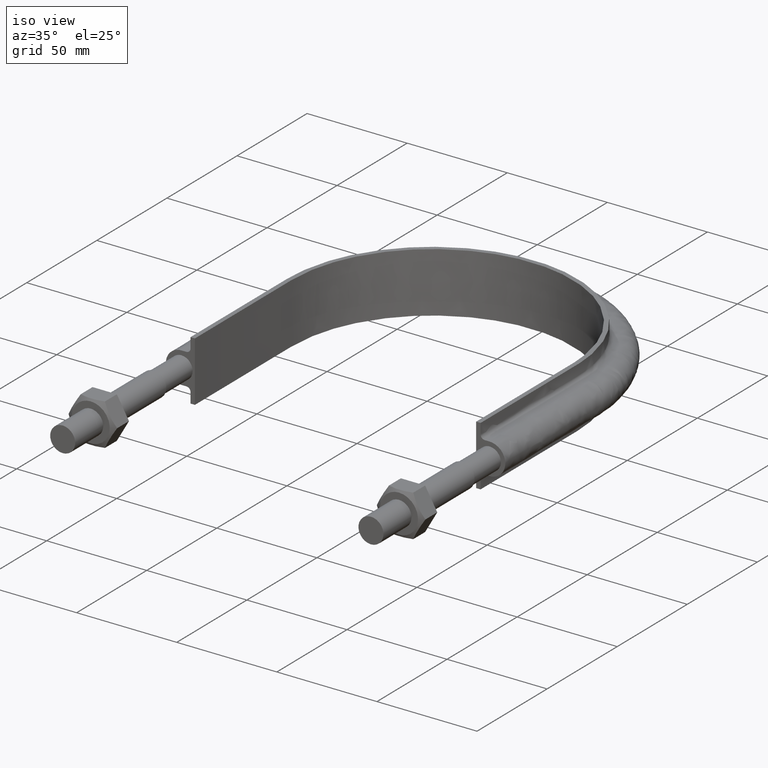
[diagram: clean part render]
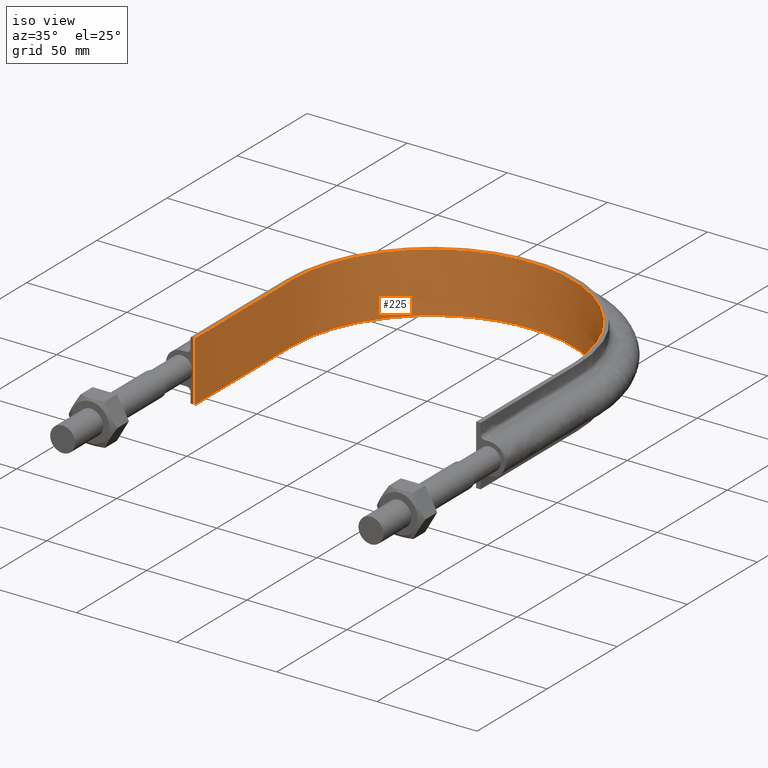
[diagram: same view with one face highlighted and labeled with its STEP entity id]
A machine part, iso view. The second image highlights one B-rep face of the part: STEP entity #225.
In plain terms, the highlighted face is a SurfaceOfExtrusion surface.
Its self-contained STEP definition (entity closure, byte-faithful):
#225 = ADVANCED_FACE( '', ( #275 ), #276, .T. );
#275 = FACE_OUTER_BOUND( '', #1047, .T. );
#276 = SURFACE_OF_LINEAR_EXTRUSION( '', #1048, #1049 );
#1047 = EDGE_LOOP( '', ( #1346, #1347, #1348, #1349 ) );
#1048 = B_SPLINE_CURVE_WITH_KNOTS( '', 3, ( #1350, #1351, #1352, #1353, #1354, #1355, #1356, #1357, #1358, #1359, #1360, #1361, #1362, #1363, #1364, #1365 ), .UNSPECIFIED., .F., .F., ( 4, 3, 1, 1, 1, 1, 1, 1, 3, 4 ), ( -9.00000000000000, -8.00000000000000, -7.00000000000000, -6.00000000000000, -5.00000000000000, -4.00000000000000, -3.00000000000000, -2.00000000000000, -1.00000000000000, 0.000000000000000 ), .UNSPECIFIED. );
#1049 = VECTOR( '', #1366, 1000.00000000000 );
#1346 = ORIENTED_EDGE( '', *, *, #1612, .F. );
#1347 = ORIENTED_EDGE( '', *, *, #1599, .F. );
#1348 = ORIENTED_EDGE( '', *, *, #1604, .T. );
#1349 = ORIENTED_EDGE( '', *, *, #1608, .T. );
#1350 = CARTESIAN_POINT( '', ( -70.2500000000000, 84.7100000000000, -237.081057040700 ) );
#1351 = CARTESIAN_POINT( '', ( -70.2500000000000, 107.726666666667, -237.081057040700 ) );
#1352 = CARTESIAN_POINT( '', ( -70.2500000000000, 130.743333333333, -237.081057040700 ) );
#1353 = CARTESIAN_POINT( '', ( -70.2500000000000, 153.760000000000, -237.081057040700 ) );
#1354 = CARTESIAN_POINT( '', ( -70.2500000000000, 164.249418134732, -237.081057040700 ) );
#1355 = CARTESIAN_POINT( '', ( -65.4537147955432, 185.288971927909, -237.081057040700 ) );
#1356 = CARTESIAN_POINT( '', ( -45.2953760364684, 210.556467088273, -237.081057040700 ) );
#1357 = CARTESIAN_POINT( '', ( -16.1657325420394, 224.587129579273, -237.081057040700 ) );
#1358 = CARTESIAN_POINT( '', ( 16.1657325420395, 224.587129579273, -237.081057040700 ) );
#1359 = CARTESIAN_POINT( '', ( 45.2953760364684, 210.556467088273, -237.081057040700 ) );
#1360 = CARTESIAN_POINT( '', ( 65.4537147955432, 185.288971927909, -237.081057040700 ) );
#1361 = CARTESIAN_POINT( '', ( 70.2500000000000, 164.249418134732, -237.081057040700 ) );
#1362 = CARTESIAN_POINT( '', ( 70.2500000000000, 153.760000000000, -237.081057040700 ) );
#1363 = CARTESIAN_POINT( '', ( 70.2500000000000, 130.743333333333, -237.081057040700 ) );
#1364 = CARTESIAN_POINT( '', ( 70.2500000000000, 107.726666666667, -237.081057040700 ) );
#1365 = CARTESIAN_POINT( '', ( 70.2500000000000, 84.7100000000000, -237.081057040700 ) );
#1366 = DIRECTION( '', ( 0.000000000000000, 0.000000000000000, 1.00000000000000 ) );
#1599 = EDGE_CURVE( '', #1681, #1682, #1683, .T. );
#1604 = EDGE_CURVE( '', #1681, #1691, #1692, .T. );
#1608 = EDGE_CURVE( '', #1691, #1698, #1699, .T. );
#1612 = EDGE_CURVE( '', #1682, #1698, #1704, .T. );
#1681 = VERTEX_POINT( '', #1829 );
#1682 = VERTEX_POINT( '', #1830 );
#1683 = LINE( '', #1831, #1832 );
#1691 = VERTEX_POINT( '', #1882 );
#1692 = B_SPLINE_CURVE_WITH_KNOTS( '', 3, ( #1883, #1884, #1885, #1886, #1887, #1888, #1889, #1890, #1891, #1892, #1893, #1894, #1895, #1896, #1897, #1898 ), .UNSPECIFIED., .F., .F., ( 4, 3, 1, 1, 1, 1, 1, 1, 3, 4 ), ( -9.00000000000000, -8.00000000000000, -7.00000000000000, -6.00000000000000, -5.00000000000000, -4.00000000000000, -3.00000000000000, -2.00000000000000, -1.00000000000000, 0.000000000000000 ), .UNSPECIFIED. );
#1698 = VERTEX_POINT( '', #1930 );
#1699 = LINE( '', #1931, #1932 );
#1704 = B_SPLINE_CURVE_WITH_KNOTS( '', 3, ( #1983, #1984, #1985, #1986, #1987, #1988, #1989, #1990, #1991, #1992, #1993, #1994, #1995, #1996, #1997, #1998 ), .UNSPECIFIED., .F., .F., ( 4, 3, 1, 1, 1, 1, 1, 1, 3, 4 ), ( -9.00000000000000, -8.00000000000000, -7.00000000000000, -6.00000000000000, -5.00000000000000, -4.00000000000000, -3.00000000000000, -2.00000000000000, -1.00000000000000, 0.000000000000000 ), .UNSPECIFIED. );
#1829 = CARTESIAN_POINT( '', ( -70.2500000000000, 84.7100000000000, -15.0000000000000 ) );
#1830 = CARTESIAN_POINT( '', ( -70.2500000000000, 84.7100000000000, 15.0000000000000 ) );
#1831 = CARTESIAN_POINT( '', ( -70.2500000000000, 84.7100000000000, -237.081057040700 ) );
#1832 = VECTOR( '', #2327, 1000.00000000000 );
#1882 = CARTESIAN_POINT( '', ( 70.2500000000000, 84.7100000000000, -15.0000000000000 ) );
#1883 = CARTESIAN_POINT( '', ( -70.2500000000000, 84.7100000000000, -15.0000000000000 ) );
#1884 = CARTESIAN_POINT( '', ( -70.2500000000000, 107.726666666667, -15.0000000000000 ) );
#1885 = CARTESIAN_POINT( '', ( -70.2500000000000, 130.743333333333, -15.0000000000000 ) );
#1886 = CARTESIAN_POINT( '', ( -70.2500000000000, 153.760000000000, -15.0000000000000 ) );
#1887 = CARTESIAN_POINT( '', ( -70.2500000000000, 164.249418134732, -15.0000000000000 ) );
#1888 = CARTESIAN_POINT( '', ( -65.4537147955432, 185.288971927909, -15.0000000000000 ) );
#1889 = CARTESIAN_POINT( '', ( -45.2953760364684, 210.556467088273, -15.0000000000000 ) );
#1890 = CARTESIAN_POINT( '', ( -16.1657325420394, 224.587129579273, -15.0000000000000 ) );
#1891 = CARTESIAN_POINT( '', ( 16.1657325420395, 224.587129579273, -15.0000000000000 ) );
#1892 = CARTESIAN_POINT( '', ( 45.2953760364684, 210.556467088273, -15.0000000000000 ) );
#1893 = CARTESIAN_POINT( '', ( 65.4537147955432, 185.288971927909, -15.0000000000000 ) );
#1894 = CARTESIAN_POINT( '', ( 70.2500000000000, 164.249418134732, -15.0000000000000 ) );
#1895 = CARTESIAN_POINT( '', ( 70.2500000000000, 153.760000000000, -15.0000000000000 ) );
#1896 = CARTESIAN_POINT( '', ( 70.2500000000000, 130.743333333333, -15.0000000000000 ) );
#1897 = CARTESIAN_POINT( '', ( 70.2500000000000, 107.726666666667, -15.0000000000000 ) );
#1898 = CARTESIAN_POINT( '', ( 70.2500000000000, 84.7100000000000, -15.0000000000000 ) );
#1930 = CARTESIAN_POINT( '', ( 70.2500000000000, 84.7100000000000, 15.0000000000000 ) );
#1931 = CARTESIAN_POINT( '', ( 70.2500000000000, 84.7100000000000, -237.081057040700 ) );
#1932 = VECTOR( '', #2331, 1000.00000000000 );
#1983 = CARTESIAN_POINT( '', ( -70.2500000000000, 84.7100000000000, 15.0000000000000 ) );
#1984 = CARTESIAN_POINT( '', ( -70.2500000000000, 107.726666666667, 15.0000000000000 ) );
#1985 = CARTESIAN_POINT( '', ( -70.2500000000000, 130.743333333333, 15.0000000000000 ) );
#1986 = CARTESIAN_POINT( '', ( -70.2500000000000, 153.760000000000, 15.0000000000000 ) );
#1987 = CARTESIAN_POINT( '', ( -70.2500000000000, 164.249418134732, 15.0000000000000 ) );
#1988 = CARTESIAN_POINT( '', ( -65.4537147955432, 185.288971927909, 15.0000000000000 ) );
#1989 = CARTESIAN_POINT( '', ( -45.2953760364684, 210.556467088273, 15.0000000000000 ) );
#1990 = CARTESIAN_POINT( '', ( -16.1657325420394, 224.587129579273, 15.0000000000000 ) );
#1991 = CARTESIAN_POINT( '', ( 16.1657325420395, 224.587129579273, 15.0000000000000 ) );
#1992 = CARTESIAN_POINT( '', ( 45.2953760364684, 210.556467088273, 15.0000000000000 ) );
#1993 = CARTESIAN_POINT( '', ( 65.4537147955432, 185.288971927909, 15.0000000000000 ) );
#1994 = CARTESIAN_POINT( '', ( 70.2500000000000, 164.249418134732, 15.0000000000000 ) );
#1995 = CARTESIAN_POINT( '', ( 70.2500000000000, 153.760000000000, 15.0000000000000 ) );
#1996 = CARTESIAN_POINT( '', ( 70.2500000000000, 130.743333333333, 15.0000000000000 ) );
#1997 = CARTESIAN_POINT( '', ( 70.2500000000000, 107.726666666667, 15.0000000000000 ) );
#1998 = CARTESIAN_POINT( '', ( 70.2500000000000, 84.7100000000000, 15.0000000000000 ) );
#2327 = DIRECTION( '', ( 0.000000000000000, 0.000000000000000, 1.00000000000000 ) );
#2331 = DIRECTION( '', ( 0.000000000000000, 0.000000000000000, 1.00000000000000 ) );